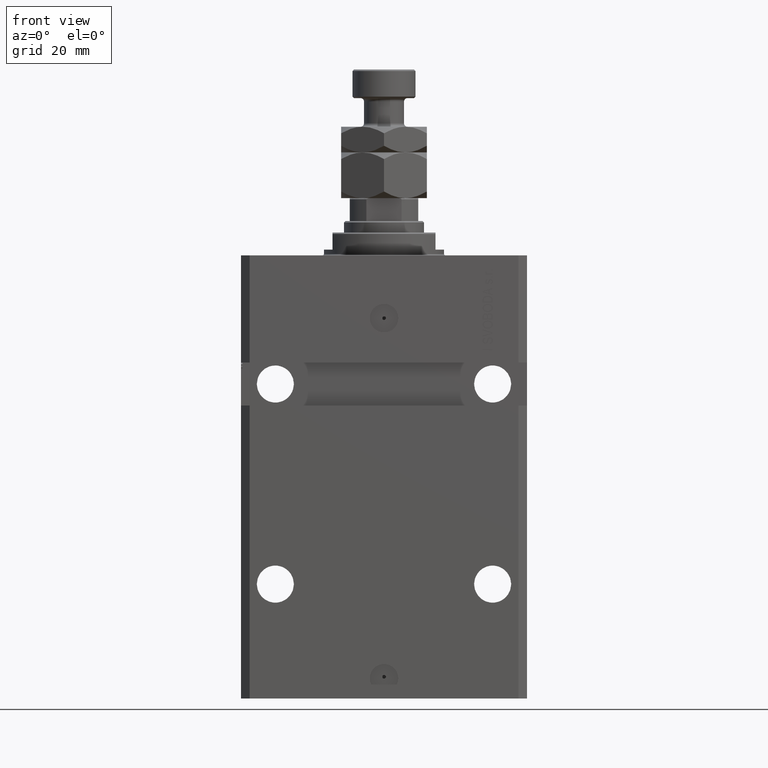
[diagram: clean part render]
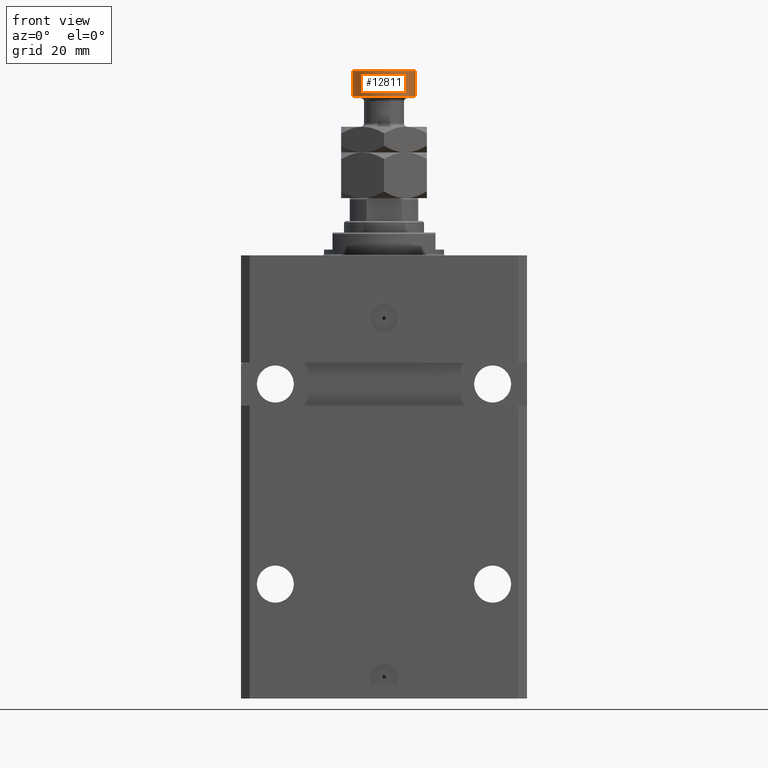
[diagram: same view with one face highlighted and labeled with its STEP entity id]
A machine part, front view. The second image highlights one B-rep face of the part: STEP entity #12811.
In plain terms, the highlighted cylindrical surface (edge-blend (fillet) strip) has radius 11 mm, axis along (-0, -0, -1).
Its self-contained STEP definition (entity closure, byte-faithful):
#232 = CARTESIAN_POINT ( 'NONE',  ( 11.00000000000000000, 1.347111479062088405E-15, 45.00000000000000711 ) ) ;
#2395 = DIRECTION ( 'NONE',  ( -0.000000000000000000, -0.000000000000000000, -1.000000000000000000 ) ) ;
#3762 = DIRECTION ( 'NONE',  ( -0.000000000000000000, -0.000000000000000000, -1.000000000000000000 ) ) ;
#7943 = DIRECTION ( 'NONE',  ( -0.000000000000000000, -0.000000000000000000, 1.000000000000000000 ) ) ;
#8002 = EDGE_CURVE ( 'NONE', #17724, #35661, #33124, .T. ) ;
#9236 = AXIS2_PLACEMENT_3D ( 'NONE', #40301, #22529, #37920 ) ;
#9436 = VECTOR ( 'NONE', #3762, 1000.000000000000000 ) ;
#9645 = DIRECTION ( 'NONE',  ( -0.000000000000000000, -0.000000000000000000, -1.000000000000000000 ) ) ;
#9964 = AXIS2_PLACEMENT_3D ( 'NONE', #36963, #2395, #21793 ) ;
#12811 = ADVANCED_FACE ( 'NONE', ( #47563 ), #21548, .T. ) ;
#16283 = EDGE_CURVE ( 'NONE', #41137, #45788, #45516, .T. ) ;
#16494 = DIRECTION ( 'NONE',  ( 1.000000000000000000, 0.000000000000000000, 0.000000000000000000 ) ) ;
#17724 = VERTEX_POINT ( 'NONE', #23361 ) ;
#19056 = EDGE_LOOP ( 'NONE', ( #28414, #39329, #24110, #27492 ) ) ;
#19392 = LINE ( 'NONE', #232, #9436 ) ;
#21231 = LINE ( 'NONE', #24784, #33430 ) ;
#21548 = CYLINDRICAL_SURFACE ( 'NONE', #9964, 11.00000000000000000 ) ;
#21793 = DIRECTION ( 'NONE',  ( -1.000000000000000000, 0.000000000000000000, 0.000000000000000000 ) ) ;
#22529 = DIRECTION ( 'NONE',  ( 0.000000000000000000, 0.000000000000000000, -1.000000000000000000 ) ) ;
#23361 = CARTESIAN_POINT ( 'NONE',  ( -11.00000000000000000, 0.000000000000000000, 35.50000000000001421 ) ) ;
#23394 = CARTESIAN_POINT ( 'NONE',  ( 11.00000000000000000, 1.347111479062088405E-15, 35.50000000000001421 ) ) ;
#24110 = ORIENTED_EDGE ( 'NONE', *, *, #47794, .T. ) ;
#24784 = CARTESIAN_POINT ( 'NONE',  ( -11.00000000000000000, 0.000000000000000000, 45.00000000000000711 ) ) ;
#25367 = EDGE_CURVE ( 'NONE', #41137, #35661, #19392, .T. ) ;
#25874 = AXIS2_PLACEMENT_3D ( 'NONE', #31874, #7943, #16494 ) ;
#27492 = ORIENTED_EDGE ( 'NONE', *, *, #8002, .T. ) ;
#28414 = ORIENTED_EDGE ( 'NONE', *, *, #25367, .F. ) ;
#31874 = CARTESIAN_POINT ( 'NONE',  ( 0.000000000000000000, 0.000000000000000000, 35.50000000000001421 ) ) ;
#32438 = CARTESIAN_POINT ( 'NONE',  ( 11.00000000000000000, 1.347111479062088405E-15, 44.50000000000001421 ) ) ;
#33124 = CIRCLE ( 'NONE', #25874, 11.00000000000000000 ) ;
#33430 = VECTOR ( 'NONE', #9645, 1000.000000000000000 ) ;
#35661 = VERTEX_POINT ( 'NONE', #23394 ) ;
#36963 = CARTESIAN_POINT ( 'NONE',  ( 0.000000000000000000, 0.000000000000000000, 45.00000000000000711 ) ) ;
#37920 = DIRECTION ( 'NONE',  ( 1.000000000000000000, 0.000000000000000000, 0.000000000000000000 ) ) ;
#39329 = ORIENTED_EDGE ( 'NONE', *, *, #16283, .T. ) ;
#40301 = CARTESIAN_POINT ( 'NONE',  ( 0.000000000000000000, 0.000000000000000000, 44.50000000000001421 ) ) ;
#41137 = VERTEX_POINT ( 'NONE', #32438 ) ;
#45516 = CIRCLE ( 'NONE', #9236, 11.00000000000000000 ) ;
#45783 = CARTESIAN_POINT ( 'NONE',  ( -11.00000000000000000, 0.000000000000000000, 44.50000000000001421 ) ) ;
#45788 = VERTEX_POINT ( 'NONE', #45783 ) ;
#47563 = FACE_OUTER_BOUND ( 'NONE', #19056, .T. ) ;
#47794 = EDGE_CURVE ( 'NONE', #45788, #17724, #21231, .T. ) ;